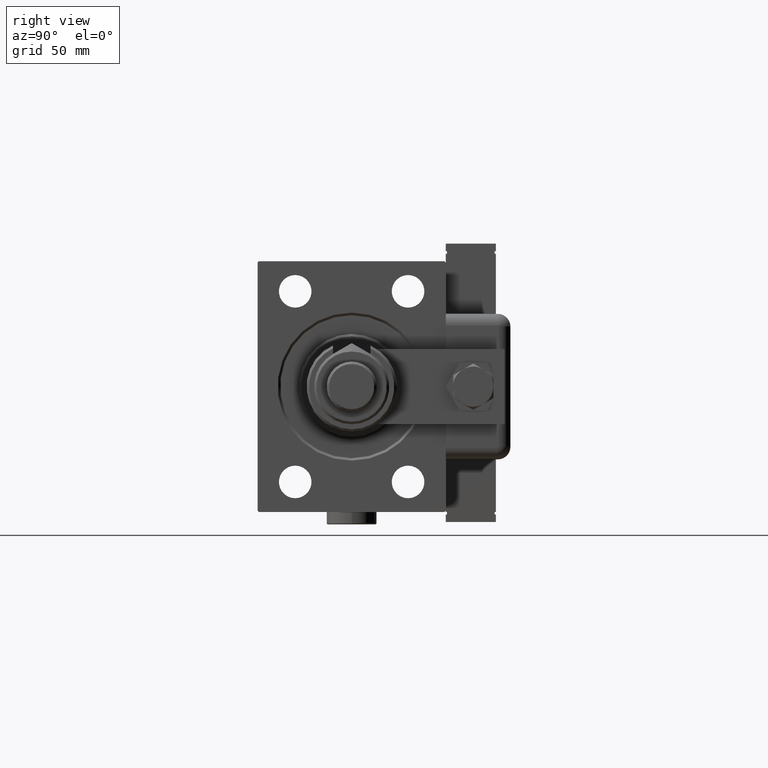
[diagram: clean part render]
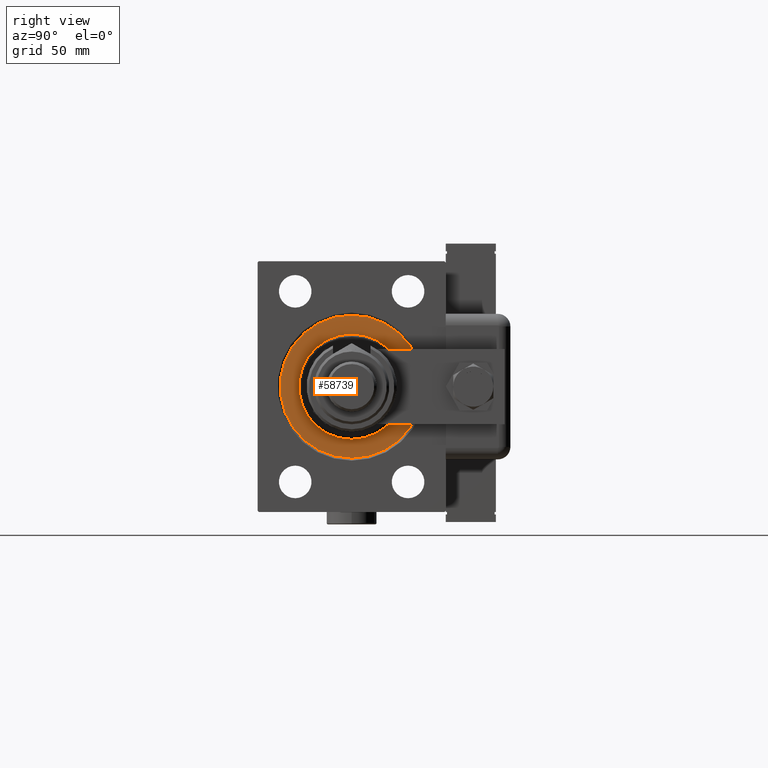
[diagram: same view with one face highlighted and labeled with its STEP entity id]
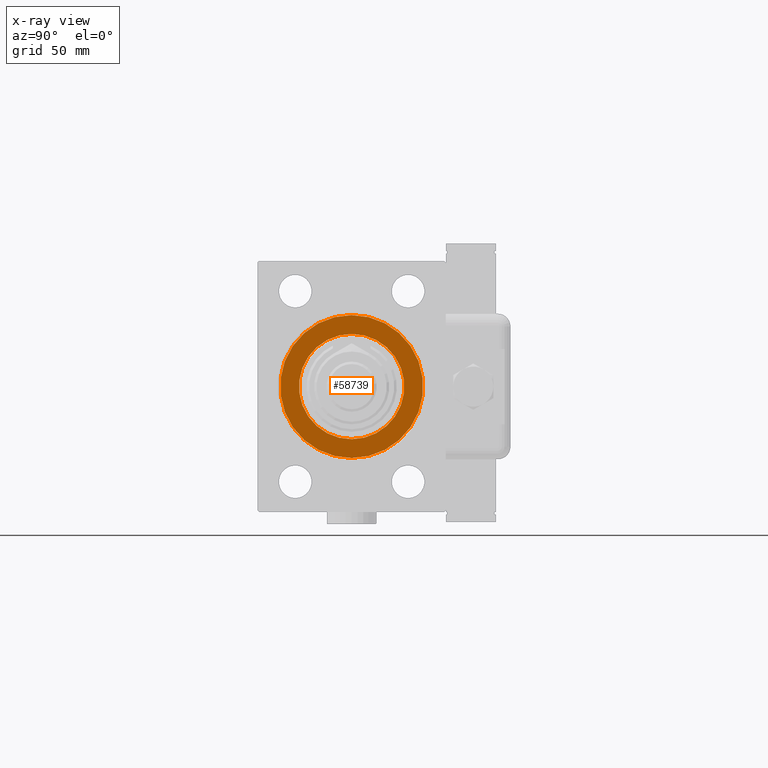
[diagram: x-ray of the same camera — body ghosted, the highlighted face saturated]
A machine part, right view. The second image highlights one B-rep face of the part: STEP entity #58739.
The next image is the same camera in x-ray: the body ghosted, the highlighted face saturated — about 0% of this face is hidden behind the body in this view.
In plain terms, the highlighted planar face has unit normal (-1, 0, 0).
Its self-contained STEP definition (entity closure, byte-faithful):
#497 = CARTESIAN_POINT ( 'NONE',  ( 0.000000000000000000, 0.000000000000000000, 21.00000000000000000 ) ) ;
#676 = FACE_OUTER_BOUND ( 'NONE', #54426, .T. ) ;
#1633 = EDGE_CURVE ( 'NONE', #47906, #26706, #51789, .T. ) ;
#2864 = EDGE_CURVE ( 'NONE', #16346, #20320, #6006, .T. ) ;
#4684 = CARTESIAN_POINT ( 'NONE',  ( 0.000000000000000000, 2.571758278209441661E-15, -21.00000000000000000 ) ) ;
#6006 = CIRCLE ( 'NONE', #57094, 21.00000000000000000 ) ;
#9010 = DIRECTION ( 'NONE',  ( -1.000000000000000000, 0.000000000000000000, 0.000000000000000000 ) ) ;
#9031 = CARTESIAN_POINT ( 'NONE',  ( 0.000000000000000000, 0.000000000000000000, 0.000000000000000000 ) ) ;
#10668 = EDGE_LOOP ( 'NONE', ( #39645, #14547 ) ) ;
#10950 = DIRECTION ( 'NONE',  ( 1.000000000000000000, -0.000000000000000000, 0.000000000000000000 ) ) ;
#14547 = ORIENTED_EDGE ( 'NONE', *, *, #2864, .F. ) ;
#15669 = EDGE_CURVE ( 'NONE', #26706, #47906, #46919, .T. ) ;
#16346 = VERTEX_POINT ( 'NONE', #4684 ) ;
#18906 = DIRECTION ( 'NONE',  ( 0.000000000000000000, 0.000000000000000000, 1.000000000000000000 ) ) ;
#19620 = PLANE ( 'NONE',  #55679 ) ;
#20320 = VERTEX_POINT ( 'NONE', #497 ) ;
#23410 = DIRECTION ( 'NONE',  ( 0.000000000000000000, 0.000000000000000000, -1.000000000000000000 ) ) ;
#24977 = DIRECTION ( 'NONE',  ( 0.000000000000000000, 0.000000000000000000, 1.000000000000000000 ) ) ;
#26595 = DIRECTION ( 'NONE',  ( 0.000000000000000000, 0.000000000000000000, -1.000000000000000000 ) ) ;
#26706 = VERTEX_POINT ( 'NONE', #28999 ) ;
#27789 = AXIS2_PLACEMENT_3D ( 'NONE', #54397, #9010, #24977 ) ;
#28999 = CARTESIAN_POINT ( 'NONE',  ( 0.000000000000000000, 3.490243377569956456E-15, 28.50000000000000000 ) ) ;
#29000 = DIRECTION ( 'NONE',  ( -1.000000000000000000, 0.000000000000000000, 0.000000000000000000 ) ) ;
#32874 = DIRECTION ( 'NONE',  ( 1.000000000000000000, -0.000000000000000000, 0.000000000000000000 ) ) ;
#35620 = DIRECTION ( 'NONE',  ( -1.000000000000000000, 0.000000000000000000, 0.000000000000000000 ) ) ;
#35951 = EDGE_CURVE ( 'NONE', #20320, #16346, #62100, .T. ) ;
#39645 = ORIENTED_EDGE ( 'NONE', *, *, #35951, .F. ) ;
#40198 = CARTESIAN_POINT ( 'NONE',  ( 0.000000000000000000, 0.000000000000000000, 0.000000000000000000 ) ) ;
#41313 = CARTESIAN_POINT ( 'NONE',  ( 0.000000000000000000, 0.000000000000000000, 0.000000000000000000 ) ) ;
#41678 = ORIENTED_EDGE ( 'NONE', *, *, #1633, .F. ) ;
#43340 = ORIENTED_EDGE ( 'NONE', *, *, #15669, .F. ) ;
#44117 = FACE_BOUND ( 'NONE', #10668, .T. ) ;
#44479 = CARTESIAN_POINT ( 'NONE',  ( 0.000000000000000000, 0.000000000000000000, -28.50000000000000000 ) ) ;
#46919 = CIRCLE ( 'NONE', #63624, 28.50000000000000000 ) ;
#47906 = VERTEX_POINT ( 'NONE', #44479 ) ;
#51789 = CIRCLE ( 'NONE', #27789, 28.50000000000000000 ) ;
#53517 = CARTESIAN_POINT ( 'NONE',  ( 0.000000000000000000, 0.000000000000000000, 0.000000000000000000 ) ) ;
#54397 = CARTESIAN_POINT ( 'NONE',  ( 0.000000000000000000, 0.000000000000000000, 0.000000000000000000 ) ) ;
#54426 = EDGE_LOOP ( 'NONE', ( #41678, #43340 ) ) ;
#55679 = AXIS2_PLACEMENT_3D ( 'NONE', #40198, #35620, #64059 ) ;
#57094 = AXIS2_PLACEMENT_3D ( 'NONE', #41313, #10950, #26595 ) ;
#58739 = ADVANCED_FACE ( 'NONE', ( #44117, #676 ), #19620, .F. ) ;
#58932 = AXIS2_PLACEMENT_3D ( 'NONE', #9031, #32874, #23410 ) ;
#62100 = CIRCLE ( 'NONE', #58932, 21.00000000000000000 ) ;
#63624 = AXIS2_PLACEMENT_3D ( 'NONE', #53517, #29000, #18906 ) ;
#64059 = DIRECTION ( 'NONE',  ( 0.000000000000000000, 0.000000000000000000, 1.000000000000000000 ) ) ;